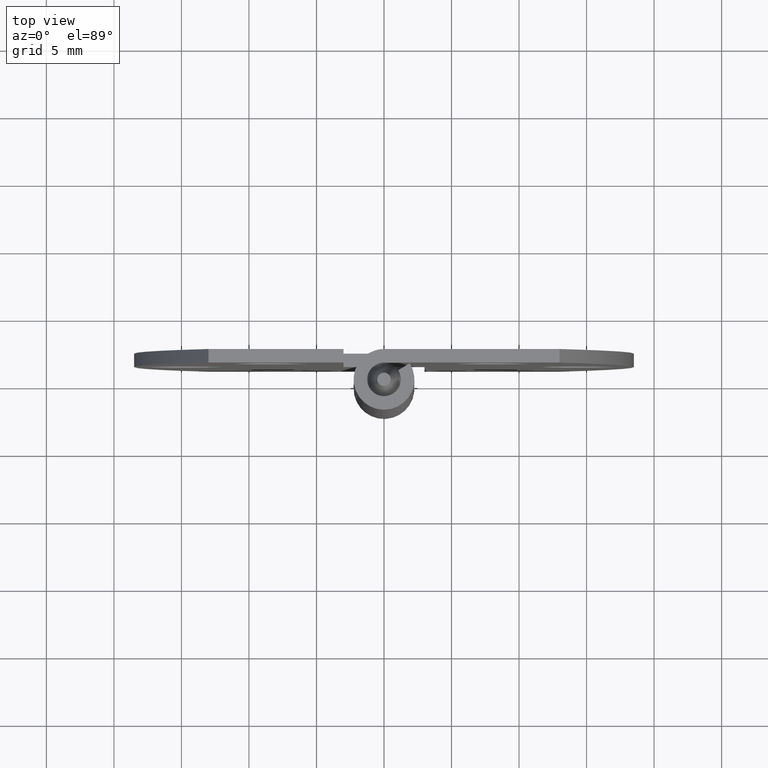
[diagram: clean part render]
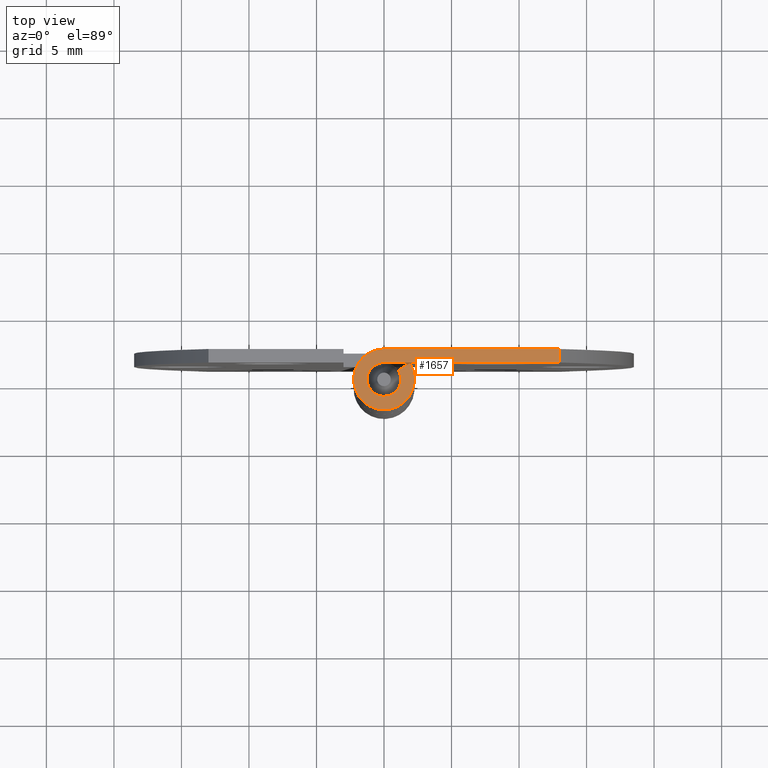
[diagram: same view with one face highlighted and labeled with its STEP entity id]
A machine part, top view. The second image highlights one B-rep face of the part: STEP entity #1657.
In plain terms, the highlighted face is a freeform B-spline surface patch.
Its self-contained STEP definition (entity closure, byte-faithful):
#1437=CARTESIAN_POINT('',(13.000003655354099,2.250000000000000,39.300003000000103));
#1438=VERTEX_POINT('',#1437);
#1452=CARTESIAN_POINT('',(13.000003655354099,1.249999999999972,39.300003000000103));
#1453=VERTEX_POINT('',#1452);
#1454=CARTESIAN_POINT('',(13.000003655354099,1.249999999999972,39.300003000000103));
#1455=CARTESIAN_POINT('',(13.000003655354099,2.250000000000000,39.300003000000103));
#1456=QUASI_UNIFORM_CURVE('',1,(#1454,#1455),.UNSPECIFIED.,.F.,.U.);
#1457=EDGE_CURVE('',#1453,#1438,#1456,.T.);
#1588=CARTESIAN_POINT('',(-3.011576713977029,-2.474130432349019,39.300003000000089));
#1589=CARTESIAN_POINT('',(13.761734060949580,-2.474130432349019,39.300003000000089));
#1590=CARTESIAN_POINT('',(-3.011576713977029,2.474744447912952,39.300003000000103));
#1591=CARTESIAN_POINT('',(13.761734060949580,2.474744447912952,39.300003000000103));
#1592=B_SPLINE_SURFACE_WITH_KNOTS('',1,1,((#1588,#1590),(#1589,#1591)),.UNSPECIFIED.,.F.,.F.,.U.,(2,2),(2,2),(0.0,16.773310774926610),(0.0,4.948874880261971),.UNSPECIFIED.);
#1593=CARTESIAN_POINT('',(0.0,1.250000000000000,39.300003000000153));
#1594=VERTEX_POINT('',#1593);
#1595=CARTESIAN_POINT('',(13.000003655354099,1.249999999999972,39.300003000000103));
#1596=CARTESIAN_POINT('',(0.0,1.250000000000000,39.300003000000153));
#1597=QUASI_UNIFORM_CURVE('',1,(#1595,#1596),.UNSPECIFIED.,.F.,.U.);
#1598=EDGE_CURVE('',#1453,#1594,#1597,.T.);
#1599=ORIENTED_EDGE('',*,*,#1598,.F.);
#1600=ORIENTED_EDGE('',*,*,#1457,.T.);
#1601=CARTESIAN_POINT('',(-4.133046E-016,2.250000000000000,39.300003000000153));
#1602=VERTEX_POINT('',#1601);
#1603=CARTESIAN_POINT('',(-4.133046E-016,2.250000000000000,39.300003000000153));
#1604=CARTESIAN_POINT('',(13.000003655354099,2.250000000000000,39.300003000000103));
#1605=QUASI_UNIFORM_CURVE('',1,(#1603,#1604),.UNSPECIFIED.,.F.,.U.);
#1606=EDGE_CURVE('',#1602,#1438,#1605,.T.);
#1607=ORIENTED_EDGE('',*,*,#1606,.F.);
#1608=CARTESIAN_POINT('',(1.903286631067425,1.200000000000000,39.300003000000153));
#1609=VERTEX_POINT('',#1608);
#1610=CARTESIAN_POINT('',(1.903286631067427,1.200000000000001,39.300003000000153));
#1611=CARTESIAN_POINT('',(2.833393400139309,-0.275216482533191,39.300003000000153));
#1612=CARTESIAN_POINT('',(1.636767137465298,-1.543856644158924,39.300003000000153));
#1613=CARTESIAN_POINT('',(0.440140874791285,-2.812496805784658,39.300003000000153));
#1614=CARTESIAN_POINT('',(-1.086853255964208,-1.970088830484555,39.300003000000153));
#1615=CARTESIAN_POINT('',(-2.613847386719700,-1.127680855184451,39.300003000000153));
#1616=CARTESIAN_POINT('',(-2.178898789364739,0.561159572407774,39.300003000000153));
#1617=CARTESIAN_POINT('',(-1.743950192009778,2.250000000000000,39.300003000000153));
#1618=CARTESIAN_POINT('',(0.0,2.250000000000000,39.300003000000153));
#1626=(BOUNDED_CURVE()B_SPLINE_CURVE(2,(#1610,#1611,#1612,#1613,#1614,#1615,#1616,#1617,#1618),.UNSPECIFIED.,.F.,.U.)B_SPLINE_CURVE_WITH_KNOTS((3,2,2,2,3),(0.0,0.250000000000000,0.500000000000000,0.750000000000000,1.0),.UNSPECIFIED.)CURVE()GEOMETRIC_REPRESENTATION_ITEM()RATIONAL_B_SPLINE_CURVE((1.0,0.790381001290977,1.0,0.790381001290977,1.0,0.790381001290977,1.0,0.790381001290977,1.0))REPRESENTATION_ITEM(''));
#1627=EDGE_CURVE('',#1609,#1602,#1626,.T.);
#1628=ORIENTED_EDGE('',*,*,#1627,.F.);
#1629=CARTESIAN_POINT('',(1.057381461704126,0.666666666666668,39.300003000000153));
#1630=VERTEX_POINT('',#1629);
#1631=CARTESIAN_POINT('',(1.057381461704126,0.666666666666668,39.300003000000153));
#1632=CARTESIAN_POINT('',(1.903286631067425,1.200000000000000,39.300003000000153));
#1633=QUASI_UNIFORM_CURVE('',1,(#1631,#1632),.UNSPECIFIED.,.F.,.U.);
#1634=EDGE_CURVE('',#1630,#1609,#1633,.T.);
#1635=ORIENTED_EDGE('',*,*,#1634,.F.);
#1636=CARTESIAN_POINT('',(1.057381461704126,0.666666666666668,39.300003000000153));
#1637=CARTESIAN_POINT('',(1.574107444521838,-0.152898045851771,39.300003000000153));
#1638=CARTESIAN_POINT('',(0.909315076369611,-0.857698135643846,39.300003000000153));
#1639=CARTESIAN_POINT('',(0.244522708217383,-1.562498225435921,39.300003000000153));
#1640=CARTESIAN_POINT('',(-0.603807364424558,-1.094493794713643,39.300003000000153));
#1641=CARTESIAN_POINT('',(-1.452137437066501,-0.626489363991364,39.300003000000153));
#1642=CARTESIAN_POINT('',(-1.210499327424855,0.311755318004319,39.300003000000153));
#1643=CARTESIAN_POINT('',(-0.968861217783210,1.250000000000000,39.300003000000153));
#1644=CARTESIAN_POINT('',(0.0,1.250000000000000,39.300003000000153));
#1652=(BOUNDED_CURVE()B_SPLINE_CURVE(2,(#1636,#1637,#1638,#1639,#1640,#1641,#1642,#1643,#1644),.UNSPECIFIED.,.F.,.U.)B_SPLINE_CURVE_WITH_KNOTS((3,2,2,2,3),(0.0,0.250000000000000,0.500000000000000,0.750000000000000,1.0),.UNSPECIFIED.)CURVE()GEOMETRIC_REPRESENTATION_ITEM()RATIONAL_B_SPLINE_CURVE((1.0,0.790381001290977,1.0,0.790381001290977,1.0,0.790381001290977,1.0,0.790381001290977,1.0))REPRESENTATION_ITEM(''));
#1653=EDGE_CURVE('',#1630,#1594,#1652,.T.);
#1654=ORIENTED_EDGE('',*,*,#1653,.T.);
#1655=EDGE_LOOP('',(#1599,#1600,#1607,#1628,#1635,#1654));
#1656=FACE_OUTER_BOUND('',#1655,.T.);
#1657=ADVANCED_FACE('',(#1656),#1592,.T.);